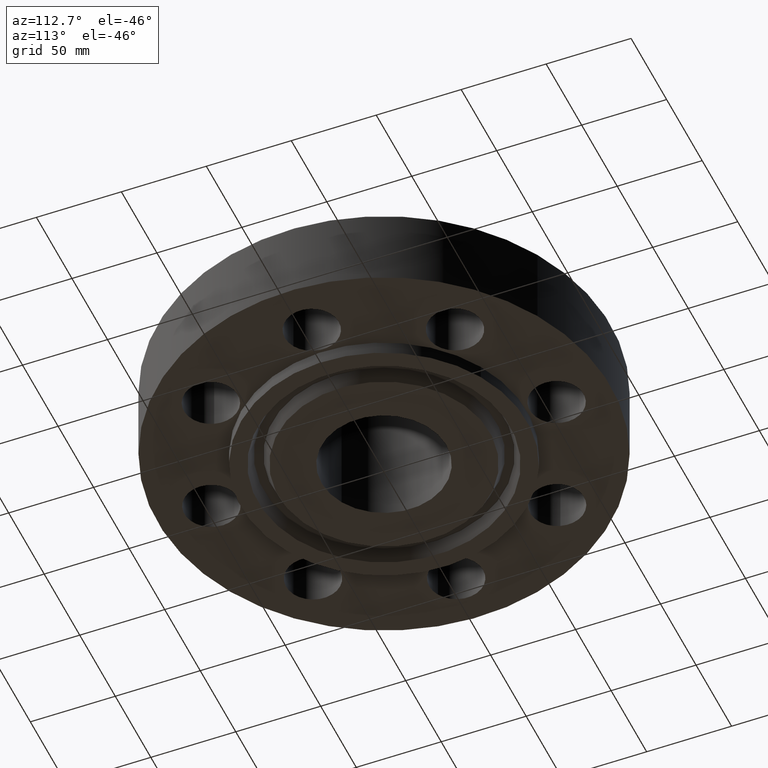
[diagram: clean part render]
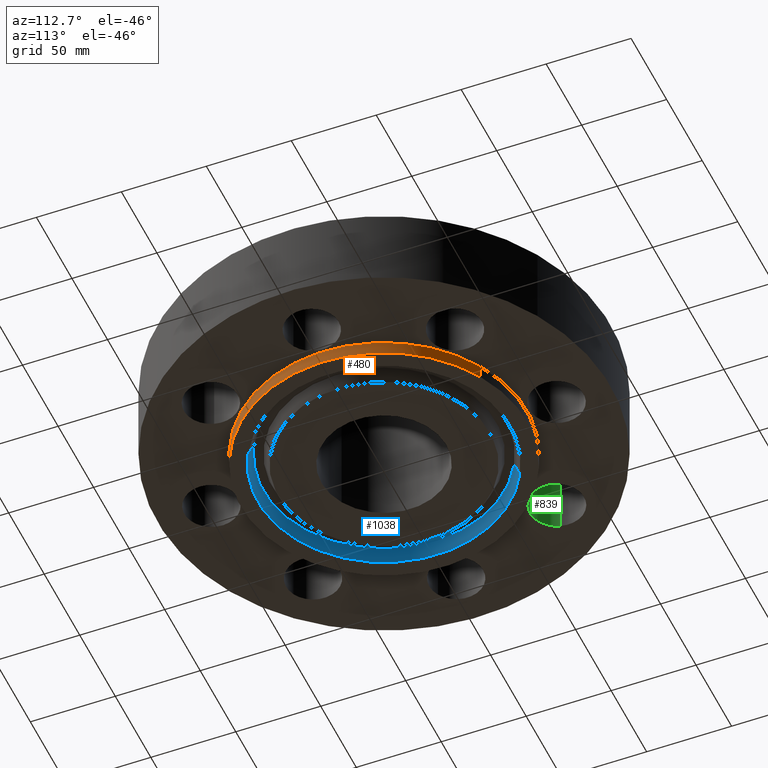
[diagram: same view with three faces highlighted in distinct colors, each labeled with its STEP entity id]
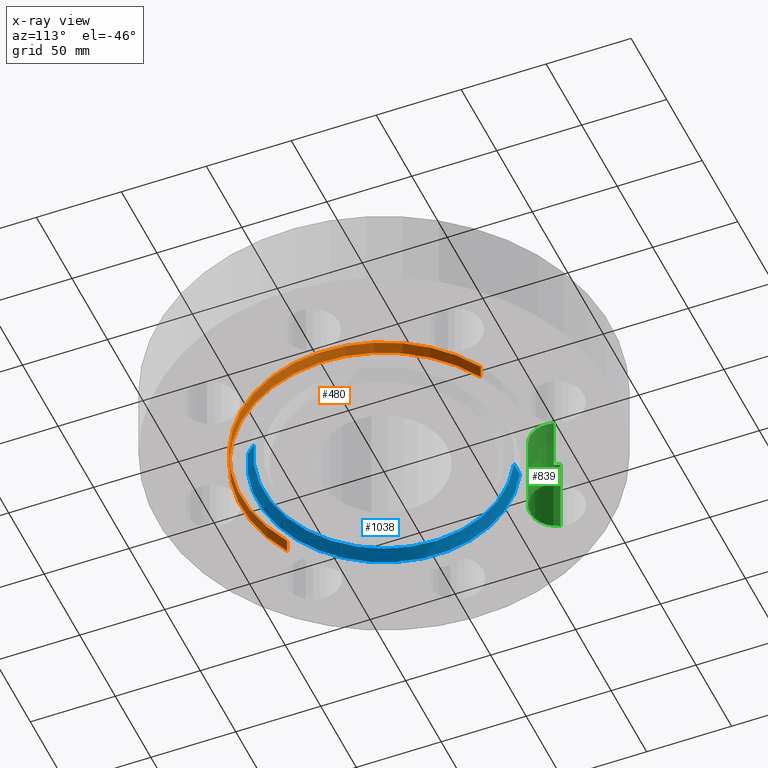
[diagram: x-ray of the same camera — body ghosted, the three highlighted faces saturated]
A machine part, auxiliary view with three faces highlighted in distinct colors.
The next image is the same camera in x-ray (body ghosted, the three faces saturated) — at least one of them is partly hidden behind the body in this view.
Their STEP definitions:

[orange] entity #480 — the highlighted cylindrical surface (partial cylindrical patch) has radius 84.1375 mm, axis along (0, 0, -1).
#427=AXIS2_PLACEMENT_3D('Cylinder Axis2P3D',#424,#425,#426) ;
#466=AXIS2_PLACEMENT_3D('Circle Axis2P3D',#464,#465,$) ;
#471=AXIS2_PLACEMENT_3D('Circle Axis2P3D',#469,#470,$) ;
#424=CARTESIAN_POINT('Axis2P3D Location',(0.,0.,2.15350000001)) ;
#433=CARTESIAN_POINT('Vertex',(-1.58809709663,-2.90699223627,-0.313000000001)) ;
#435=CARTESIAN_POINT('Vertex',(1.58809709663,2.90699223627,-0.313000000001)) ;
#438=CARTESIAN_POINT('Line Origine',(-1.58809709663,-2.90699223627,-0.156500000001)) ;
#442=CARTESIAN_POINT('Vertex',(-1.58809709663,-2.90699223627,2.79741234551E-016)) ;
#449=CARTESIAN_POINT('Vertex',(1.58809709663,2.90699223627,2.79741234551E-016)) ;
#452=CARTESIAN_POINT('Line Origine',(1.58809709663,2.90699223627,-0.156500000001)) ;
#464=CARTESIAN_POINT('Axis2P3D Location',(0.,0.,-0.313000000001)) ;
#469=CARTESIAN_POINT('Axis2P3D Location',(0.,0.,2.79741234551E-016)) ;
#425=DIRECTION('Axis2P3D Direction',(0.,0.,-0.0393700787402)) ;
#426=DIRECTION('Axis2P3D XDirection',(0.0188750212049,0.0345504945626,0.)) ;
#439=DIRECTION('Vector Direction',(0.,0.,-0.0393700787402)) ;
#453=DIRECTION('Vector Direction',(0.,0.,-0.0393700787402)) ;
#465=DIRECTION('Axis2P3D Direction',(0.,0.,-0.0393700787402)) ;
#470=DIRECTION('Axis2P3D Direction',(0.,0.,-0.0393700787402)) ;
#440=VECTOR('Line Direction',#439,0.0393700787402) ;
#454=VECTOR('Line Direction',#453,0.0393700787402) ;
#475=ORIENTED_EDGE('',*,*,#468,.F.) ;
#476=ORIENTED_EDGE('',*,*,#456,.T.) ;
#477=ORIENTED_EDGE('',*,*,#473,.T.) ;
#478=ORIENTED_EDGE('',*,*,#444,.F.) ;
#480=ADVANCED_FACE('PartBody',(#479),#428,.T.) ;
#467=CIRCLE('generated circle',#466,3.31250000001) ;
#472=CIRCLE('generated circle',#471,3.31250000001) ;
#428=CYLINDRICAL_SURFACE('generated cylinder',#427,3.31250000001) ;
#444=EDGE_CURVE('',#434,#443,#441,.F.) ;
#456=EDGE_CURVE('',#436,#450,#455,.F.) ;
#468=EDGE_CURVE('',#436,#434,#467,.T.) ;
#473=EDGE_CURVE('',#450,#443,#472,.T.) ;
#474=EDGE_LOOP('',(#475,#476,#477,#478)) ;
#479=FACE_OUTER_BOUND('',#474,.T.) ;
#441=LINE('Line',#438,#440) ;
#455=LINE('Line',#452,#454) ;
#434=VERTEX_POINT('',#433) ;
#436=VERTEX_POINT('',#435) ;
#443=VERTEX_POINT('',#442) ;
#450=VERTEX_POINT('',#449) ;

[blue] entity #1038 — the highlighted conical surface has half-angle 23 deg.
#937=AXIS2_PLACEMENT_3D('Circle Axis2P3D',#935,#936,$) ;
#984=AXIS2_PLACEMENT_3D('Circle Axis2P3D',#982,#983,$) ;
#1020=AXIS2_PLACEMENT_3D('Cone Axis2P3D',#1017,#1018,#1019) ;
#935=CARTESIAN_POINT('Axis2P3D Location',(-2.09805925913E-016,2.79741234551E-016,-0.313000000001)) ;
#939=CARTESIAN_POINT('Vertex',(1.40088142381,-2.56429624585,-0.313000000001)) ;
#941=CARTESIAN_POINT('Vertex',(-1.40088142381,2.56429624585,-0.313000000001)) ;
#982=CARTESIAN_POINT('Axis2P3D Location',(0.,0.,-0.0188873350169)) ;
#986=CARTESIAN_POINT('Vertex',(-1.34102830021,2.45473583801,-0.0188873350169)) ;
#988=CARTESIAN_POINT('Vertex',(1.34102830021,-2.45473583801,-0.0188873350169)) ;
#1017=CARTESIAN_POINT('Axis2P3D Location',(0.,0.,-0.0188873350169)) ;
#1022=CARTESIAN_POINT('Line Origine',(-1.37095486201,2.50951604193,-0.165943667509)) ;
#1027=CARTESIAN_POINT('Line Origine',(1.37095486201,-2.50951604193,-0.165943667509)) ;
#936=DIRECTION('Axis2P3D Direction',(0.,0.,-0.0393700787402)) ;
#983=DIRECTION('Axis2P3D Direction',(0.,0.,0.0393700787402)) ;
#1018=DIRECTION('Axis2P3D Direction',(-0.,-0.,-0.0393700787402)) ;
#1019=DIRECTION('Axis2P3D XDirection',(-0.0188750212049,0.0345504945626,0.)) ;
#1023=DIRECTION('Vector Direction',(-0.00737505833565,0.0134999537303,-0.0362403485611)) ;
#1028=DIRECTION('Vector Direction',(0.00737505833565,-0.0134999537303,-0.0362403485611)) ;
#1024=VECTOR('Line Direction',#1023,0.0393700787402) ;
#1029=VECTOR('Line Direction',#1028,0.0393700787402) ;
#1033=ORIENTED_EDGE('',*,*,#943,.T.) ;
#1034=ORIENTED_EDGE('',*,*,#1026,.T.) ;
#1035=ORIENTED_EDGE('',*,*,#990,.T.) ;
#1036=ORIENTED_EDGE('',*,*,#1031,.F.) ;
#1038=ADVANCED_FACE('PartBody',(#1037),#1021,.F.) ;
#938=CIRCLE('generated circle',#937,2.92200000001) ;
#985=CIRCLE('generated circle',#984,2.7971565806) ;
#1021=CONICAL_SURFACE('Cone',#1020,2.7971565806,0.401425727959) ;
#943=EDGE_CURVE('',#940,#942,#938,.T.) ;
#990=EDGE_CURVE('',#987,#989,#985,.T.) ;
#1026=EDGE_CURVE('',#942,#987,#1025,.F.) ;
#1031=EDGE_CURVE('',#940,#989,#1030,.F.) ;
#1032=EDGE_LOOP('',(#1033,#1034,#1035,#1036)) ;
#1037=FACE_OUTER_BOUND('',#1032,.T.) ;
#1025=LINE('Line',#1022,#1024) ;
#1030=LINE('Line',#1027,#1029) ;
#940=VERTEX_POINT('',#939) ;
#942=VERTEX_POINT('',#941) ;
#987=VERTEX_POINT('',#986) ;
#989=VERTEX_POINT('',#988) ;

[green] entity #839 — the highlighted cylindrical surface (edge-blend (fillet) strip) has radius 15.875 mm, axis along (0, 0, -1).
#617=AXIS2_PLACEMENT_3D('Circle Axis2P3D',#615,#616,$) ;
#800=AXIS2_PLACEMENT_3D('Cylinder Axis2P3D',#797,#798,#799) ;
#830=AXIS2_PLACEMENT_3D('Circle Axis2P3D',#828,#829,$) ;
#610=CARTESIAN_POINT('Vertex',(-3.4281456435,2.65246491779,0.)) ;
#612=CARTESIAN_POINT('Vertex',(-2.22870860601,3.00438933172,0.)) ;
#615=CARTESIAN_POINT('Axis2P3D Location',(-2.82842712476,2.82842712476,0.)) ;
#797=CARTESIAN_POINT('Axis2P3D Location',(-2.82842712476,2.82842712476,1.87606299213)) ;
#802=CARTESIAN_POINT('Line Origine',(-3.4281456435,2.65246491779,0.940000000004)) ;
#806=CARTESIAN_POINT('Vertex',(-3.4281456435,2.65246491779,1.88000000001)) ;
#809=CARTESIAN_POINT('Line Origine',(-2.22870860601,3.00438933172,0.940000000004)) ;
#813=CARTESIAN_POINT('Vertex',(-2.22870860601,3.00438933172,1.88000000001)) ;
#828=CARTESIAN_POINT('Axis2P3D Location',(-2.82842712476,2.82842712476,1.88000000001)) ;
#616=DIRECTION('Axis2P3D Direction',(0.,0.,-0.0393700787402)) ;
#798=DIRECTION('Axis2P3D Direction',(0.,0.,-0.0393700787402)) ;
#799=DIRECTION('Axis2P3D XDirection',(0.0377775444876,0.0110842335096,0.)) ;
#803=DIRECTION('Vector Direction',(0.,0.,-0.0393700787402)) ;
#810=DIRECTION('Vector Direction',(0.,0.,-0.0393700787402)) ;
#829=DIRECTION('Axis2P3D Direction',(0.,0.,-0.0393700787402)) ;
#804=VECTOR('Line Direction',#803,0.0393700787402) ;
#811=VECTOR('Line Direction',#810,0.0393700787402) ;
#834=ORIENTED_EDGE('',*,*,#815,.F.) ;
#835=ORIENTED_EDGE('',*,*,#619,.T.) ;
#836=ORIENTED_EDGE('',*,*,#808,.T.) ;
#837=ORIENTED_EDGE('',*,*,#832,.F.) ;
#839=ADVANCED_FACE('PartBody',(#838),#801,.F.) ;
#618=CIRCLE('generated circle',#617,0.625000000003) ;
#831=CIRCLE('generated circle',#830,0.625000000003) ;
#801=CYLINDRICAL_SURFACE('generated cylinder',#800,0.625000000003) ;
#619=EDGE_CURVE('',#613,#611,#618,.T.) ;
#808=EDGE_CURVE('',#611,#807,#805,.F.) ;
#815=EDGE_CURVE('',#613,#814,#812,.F.) ;
#832=EDGE_CURVE('',#814,#807,#831,.T.) ;
#833=EDGE_LOOP('',(#834,#835,#836,#837)) ;
#838=FACE_OUTER_BOUND('',#833,.T.) ;
#805=LINE('Line',#802,#804) ;
#812=LINE('Line',#809,#811) ;
#611=VERTEX_POINT('',#610) ;
#613=VERTEX_POINT('',#612) ;
#807=VERTEX_POINT('',#806) ;
#814=VERTEX_POINT('',#813) ;